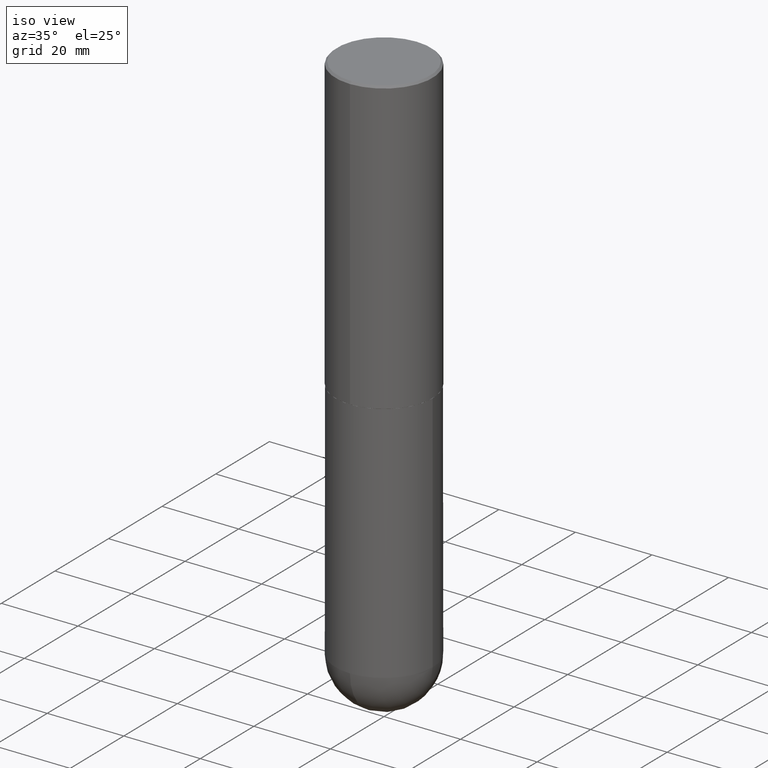
[diagram: clean part render]
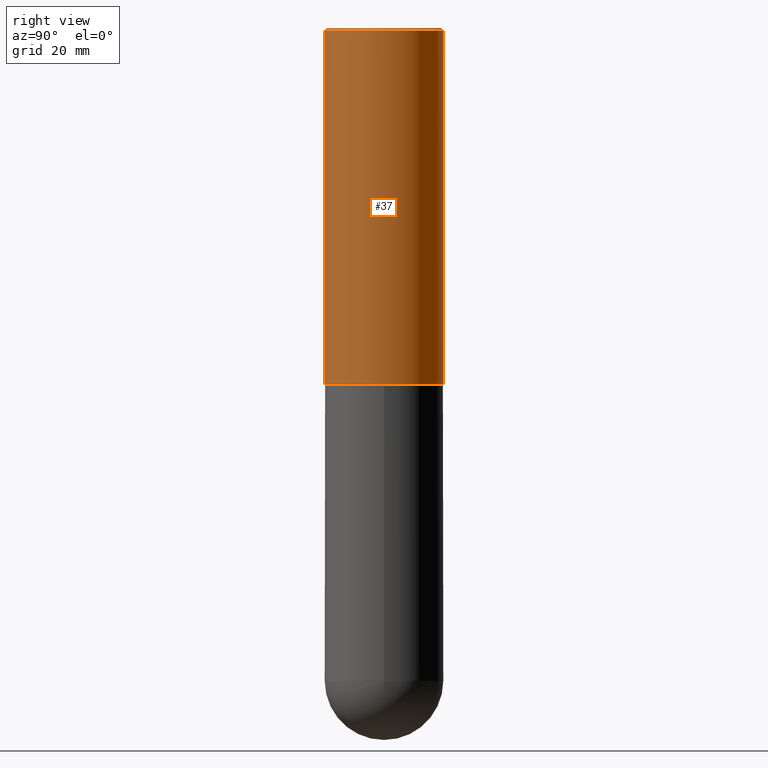
[diagram: tour spotlight — one face highlighted and labeled with its STEP entity id]
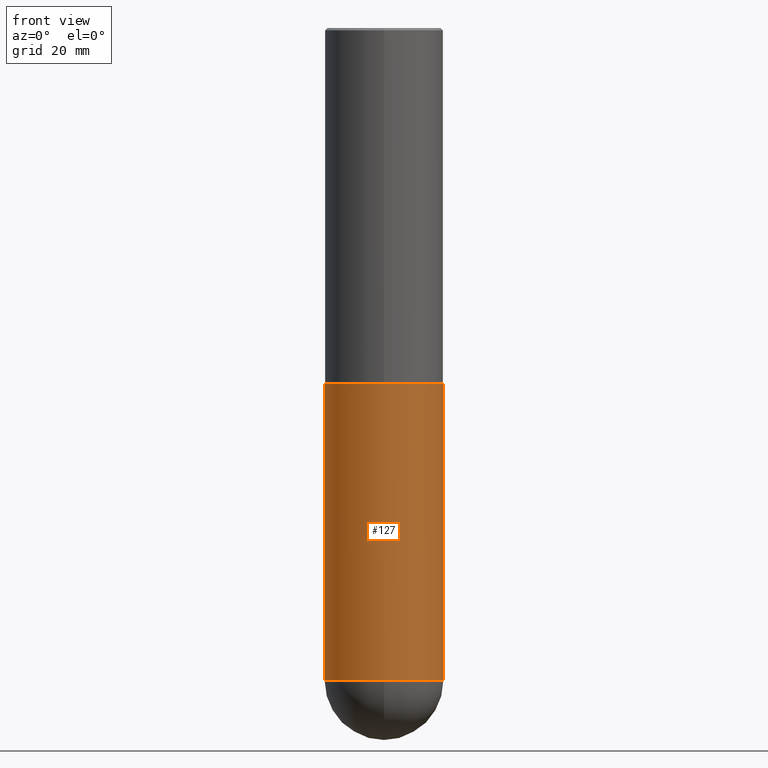
[diagram: tour spotlight — one face highlighted and labeled with its STEP entity id]
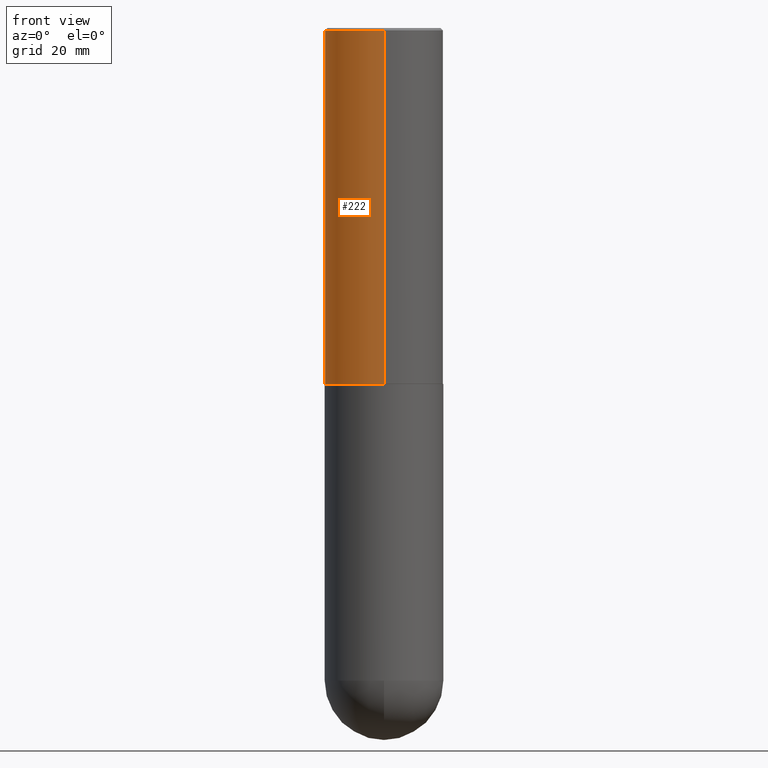
[diagram: tour spotlight — one face highlighted and labeled with its STEP entity id]
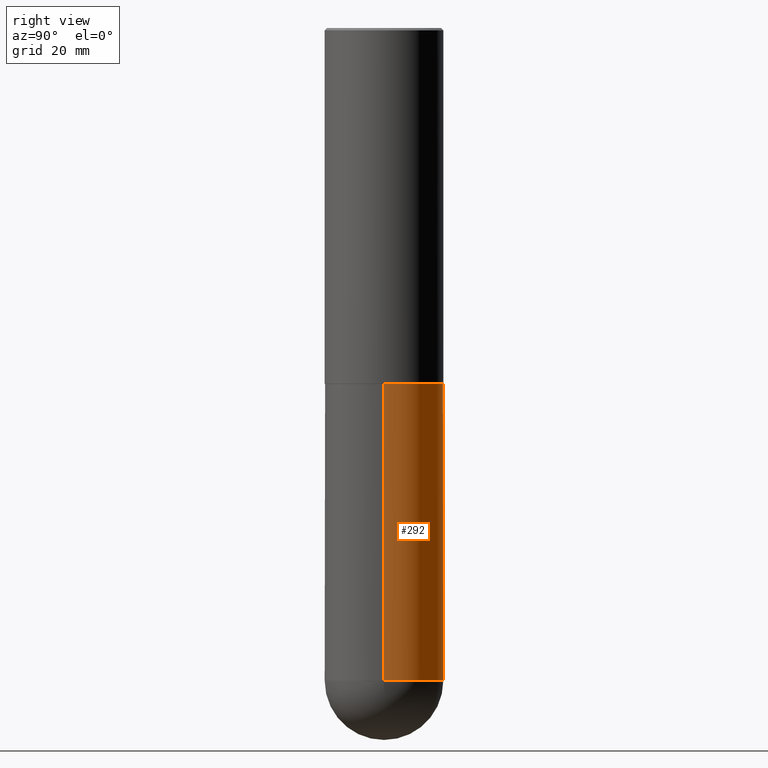
[diagram: tour spotlight — one face highlighted and labeled with its STEP entity id]
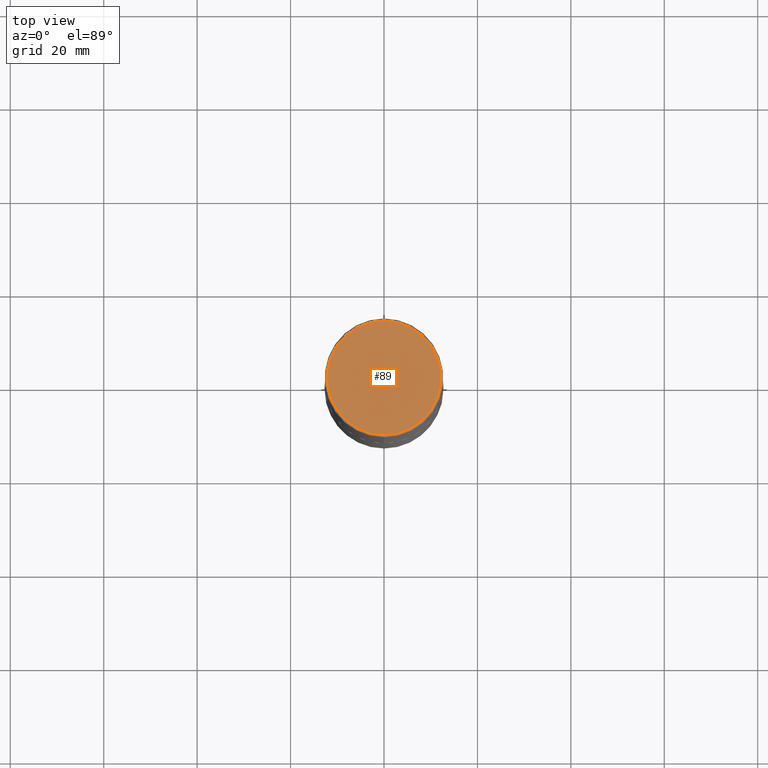
[diagram: tour spotlight — one face highlighted and labeled with its STEP entity id]
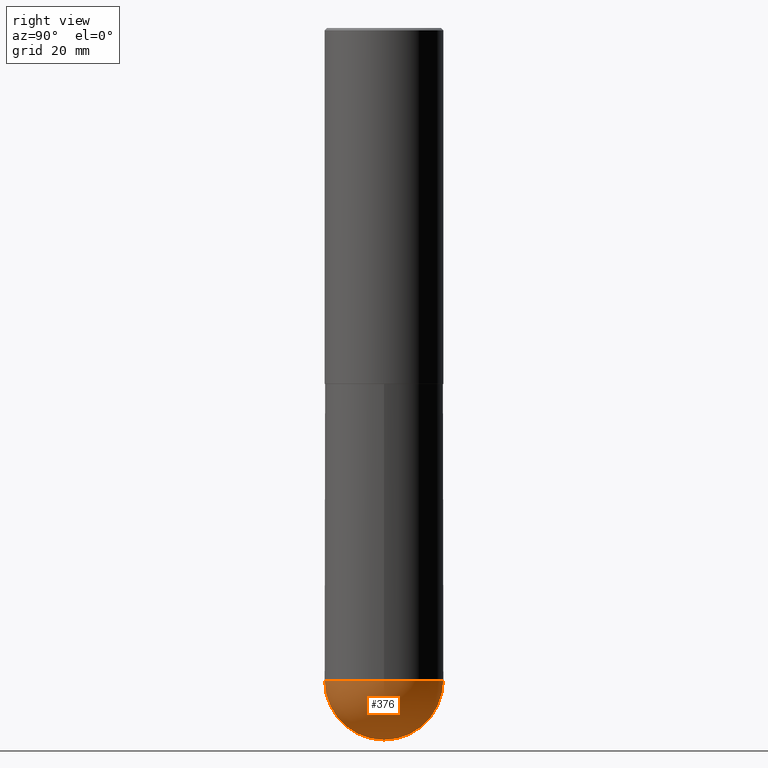
[diagram: tour spotlight — one face highlighted and labeled with its STEP entity id]
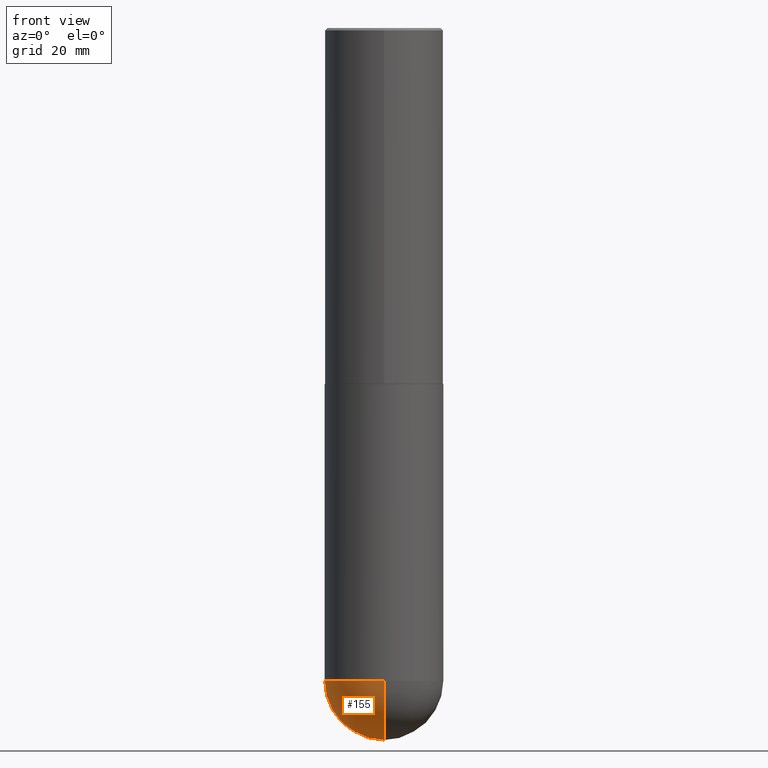
[diagram: tour spotlight — one face highlighted and labeled with its STEP entity id]
A machine part: a face-by-face anatomy tour. The part has 13 B-rep faces; the first image is the clean iso view, then the 7 largest visible faces are spotlighted one at a time (largest first), each with its STEP entity span.

Face 1 — right view, entity #37. In plain terms, the highlighted cylindrical surface (partial cylindrical patch) has radius 12.7 mm, axis along (-0, 0, 1).
Definition (entity closure, byte-faithful):
#24 = EDGE_CURVE ( 'NONE', #262, #86, #57, .T. ) ;
#29 = CYLINDRICAL_SURFACE ( 'NONE', #102, 0.5000000000000002220 ) ;
#32 = CARTESIAN_POINT ( 'NONE',  ( 4.890045448301129813E-31, -6.984240307412204920E-17, -0.02000000000000010797 ) ) ;
#37 = ADVANCED_FACE ( 'NONE', ( #186 ), #29, .T. ) ;
#50 = LINE ( 'NONE', #172, #250 ) ;
#57 = LINE ( 'NONE', #185, #95 ) ;
#76 = DIRECTION ( 'NONE',  ( -2.445022724150551752E-29, 3.492120153706083922E-15, 1.000000000000000000 ) ) ;
#83 = CARTESIAN_POINT ( 'NONE',  ( -3.430248998885764992E-15, -0.5000000000000001110, -0.01999999999999835937 ) ) ;
#86 = VERTEX_POINT ( 'NONE', #282 ) ;
#87 = DIRECTION ( 'NONE',  ( -6.982962677686265133E-15, -1.000000000000000000, 3.278217592397113101E-15 ) ) ;
#92 = DIRECTION ( 'NONE',  ( -6.982962677686265922E-15, -1.000000000000000000, 3.492120153706083528E-15 ) ) ;
#93 = EDGE_LOOP ( 'NONE', ( #331, #145, #206, #275 ) ) ;
#95 = VECTOR ( 'NONE', #219, 39.37007874015748143 ) ;
#102 = AXIS2_PLACEMENT_3D ( 'NONE', #274, #404, #92 ) ;
#141 = DIRECTION ( 'NONE',  ( -2.445022724150551752E-29, 3.492120153706083922E-15, 1.000000000000000000 ) ) ;
#142 = CIRCLE ( 'NONE', #218, 0.5000000000000000000 ) ;
#145 = ORIENTED_EDGE ( 'NONE', *, *, #24, .T. ) ;
#159 = DIRECTION ( 'NONE',  ( -6.982962677686265922E-15, -1.000000000000000000, 3.491643216902136408E-15 ) ) ;
#172 = CARTESIAN_POINT ( 'NONE',  ( -3.491481338843134539E-15, -0.5000000000000002220, 1.746060076853042553E-15 ) ) ;
#185 = CARTESIAN_POINT ( 'NONE',  ( 3.552713678800501718E-15, 0.5000000000000002220, -1.746060076853042553E-15 ) ) ;
#186 = FACE_OUTER_BOUND ( 'NONE', #93, .T. ) ;
#189 = EDGE_CURVE ( 'NONE', #242, #86, #142, .T. ) ;
#204 = VERTEX_POINT ( 'NONE', #385 ) ;
#206 = ORIENTED_EDGE ( 'NONE', *, *, #189, .F. ) ;
#218 = AXIS2_PLACEMENT_3D ( 'NONE', #32, #412, #159 ) ;
#219 = DIRECTION ( 'NONE',  ( -2.445022724150551752E-29, 3.492120153706083922E-15, 1.000000000000000000 ) ) ;
#242 = VERTEX_POINT ( 'NONE', #83 ) ;
#243 = CARTESIAN_POINT ( 'NONE',  ( 7.332623149727504925E-29, -1.047286834096454774E-14, -2.999000000000000554 ) ) ;
#250 = VECTOR ( 'NONE', #76, 39.37007874015748143 ) ;
#251 = EDGE_CURVE ( 'NONE', #204, #242, #50, .T. ) ;
#260 = CARTESIAN_POINT ( 'NONE',  ( 3.552713678800539584E-15, 0.4999999999999900080, -2.999000000000001886 ) ) ;
#262 = VERTEX_POINT ( 'NONE', #260 ) ;
#274 = CARTESIAN_POINT ( 'NONE',  ( 0.000000000000000000, 0.000000000000000000, 0.000000000000000000 ) ) ;
#275 = ORIENTED_EDGE ( 'NONE', *, *, #251, .F. ) ;
#282 = CARTESIAN_POINT ( 'NONE',  ( 3.491481338843133355E-15, 0.4999999999999999445, -0.02000000000000185310 ) ) ;
#331 = ORIENTED_EDGE ( 'NONE', *, *, #353, .T. ) ;
#344 = AXIS2_PLACEMENT_3D ( 'NONE', #243, #141, #87 ) ;
#346 = CIRCLE ( 'NONE', #344, 0.5000000000000004441 ) ;
#353 = EDGE_CURVE ( 'NONE', #204, #262, #346, .T. ) ;
#385 = CARTESIAN_POINT ( 'NONE',  ( -3.491481338843062752E-15, -0.5000000000000108802, -2.998999999999998778 ) ) ;
#404 = DIRECTION ( 'NONE',  ( -2.445022724150551752E-29, 3.492120153706083922E-15, 1.000000000000000000 ) ) ;
#412 = DIRECTION ( 'NONE',  ( -2.445022724150551752E-29, 3.492120153706083922E-15, 1.000000000000000000 ) ) ;

Face 2 — front view, entity #127. In plain terms, the highlighted cylindrical surface (partial cylindrical patch) has radius 12.7 mm, axis along (-0, 0, 1).
Definition (entity closure, byte-faithful):
#8 = VERTEX_POINT ( 'NONE', #183 ) ;
#9 = CARTESIAN_POINT ( 'NONE',  ( 1.345007843401825128E-28, -1.920314736363730603E-14, -5.500000000000000888 ) ) ;
#26 = EDGE_LOOP ( 'NONE', ( #122, #43, #49, #178, #301 ) ) ;
#43 = ORIENTED_EDGE ( 'NONE', *, *, #305, .T. ) ;
#47 = DIRECTION ( 'NONE',  ( -2.445468806185136877E-29, 3.491481338843145188E-15, 1.000000000000000000 ) ) ;
#49 = ORIENTED_EDGE ( 'NONE', *, *, #408, .T. ) ;
#70 = DIRECTION ( 'NONE',  ( -2.445468806185136597E-29, 3.491481338843145583E-15, 1.000000000000000000 ) ) ;
#96 = CIRCLE ( 'NONE', #367, 0.5000000000000000000 ) ;
#101 = DIRECTION ( 'NONE',  ( 1.000000000000000000, -6.982962677686266711E-15, 4.876176775795935793E-29 ) ) ;
#113 = DIRECTION ( 'NONE',  ( -2.445468806185136597E-29, 3.491481338843145583E-15, 1.000000000000000000 ) ) ;
#117 = CARTESIAN_POINT ( 'NONE',  ( -0.5000000000000000000, -1.128608201128287263E-14, -5.500000000000000888 ) ) ;
#122 = ORIENTED_EDGE ( 'NONE', *, *, #133, .F. ) ;
#127 = ADVANCED_FACE ( 'NONE', ( #350 ), #193, .T. ) ;
#133 = EDGE_CURVE ( 'NONE', #398, #171, #226, .T. ) ;
#153 = CARTESIAN_POINT ( 'NONE',  ( 0.5000000000000000000, -3.491481338843133355E-15, 2.438088387897967896E-29 ) ) ;
#156 = VERTEX_POINT ( 'NONE', #348 ) ;
#158 = AXIS2_PLACEMENT_3D ( 'NONE', #190, #70, #101 ) ;
#165 = DIRECTION ( 'NONE',  ( -2.445468806185136877E-29, 3.491481338843145188E-15, 1.000000000000000000 ) ) ;
#171 = VERTEX_POINT ( 'NONE', #314 ) ;
#177 = DIRECTION ( 'NONE',  ( 1.000000000000000000, -6.982962677686266711E-15, 0.000000000000000000 ) ) ;
#178 = ORIENTED_EDGE ( 'NONE', *, *, #284, .T. ) ;
#183 = CARTESIAN_POINT ( 'NONE',  ( -3.552713678800369978E-15, -0.5000000000000196509, -5.499999999999999112 ) ) ;
#187 = AXIS2_PLACEMENT_3D ( 'NONE', #241, #389, #379 ) ;
#190 = CARTESIAN_POINT ( 'NONE',  ( 0.000000000000000000, 0.000000000000000000, 0.000000000000000000 ) ) ;
#193 = CYLINDRICAL_SURFACE ( 'NONE', #158, 0.5000000000000000000 ) ;
#211 = AXIS2_PLACEMENT_3D ( 'NONE', #364, #113, #177 ) ;
#215 = DIRECTION ( 'NONE',  ( -2.445468806185136597E-29, 3.491481338843145583E-15, 1.000000000000000000 ) ) ;
#217 = CIRCLE ( 'NONE', #187, 0.5000000000000000000 ) ;
#226 = LINE ( 'NONE', #409, #246 ) ;
#241 = CARTESIAN_POINT ( 'NONE',  ( 1.345007843401825128E-28, -1.920314736363730603E-14, -5.500000000000000888 ) ) ;
#246 = VECTOR ( 'NONE', #165, 39.37007874015748143 ) ;
#268 = DIRECTION ( 'NONE',  ( 1.000000000000000000, -6.982962677686270655E-15, 0.000000000000000000 ) ) ;
#284 = EDGE_CURVE ( 'NONE', #299, #156, #300, .T. ) ;
#294 = CARTESIAN_POINT ( 'NONE',  ( 0.5000000000000000000, -1.833027702892651007E-14, -5.500000000000000888 ) ) ;
#299 = VERTEX_POINT ( 'NONE', #294 ) ;
#300 = LINE ( 'NONE', #153, #393 ) ;
#301 = ORIENTED_EDGE ( 'NONE', *, *, #336, .F. ) ;
#305 = EDGE_CURVE ( 'NONE', #398, #8, #96, .T. ) ;
#314 = CARTESIAN_POINT ( 'NONE',  ( -0.5000000000000000000, -1.128608201128286947E-14, -3.000000000000000444 ) ) ;
#336 = EDGE_CURVE ( 'NONE', #171, #156, #383, .T. ) ;
#348 = CARTESIAN_POINT ( 'NONE',  ( 0.5000000000000000000, -1.396592535537257129E-14, -3.000000000000000444 ) ) ;
#350 = FACE_OUTER_BOUND ( 'NONE', #26, .T. ) ;
#364 = CARTESIAN_POINT ( 'NONE',  ( 7.336406418555409790E-29, -1.047444401652943635E-14, -3.000000000000000444 ) ) ;
#367 = AXIS2_PLACEMENT_3D ( 'NONE', #9, #215, #268 ) ;
#379 = DIRECTION ( 'NONE',  ( 1.000000000000000000, -6.982962677686270655E-15, 0.000000000000000000 ) ) ;
#383 = CIRCLE ( 'NONE', #211, 0.5000000000000000000 ) ;
#389 = DIRECTION ( 'NONE',  ( -2.445468806185136597E-29, 3.491481338843145583E-15, 1.000000000000000000 ) ) ;
#393 = VECTOR ( 'NONE', #47, 39.37007874015748143 ) ;
#398 = VERTEX_POINT ( 'NONE', #117 ) ;
#408 = EDGE_CURVE ( 'NONE', #8, #299, #217, .T. ) ;
#409 = CARTESIAN_POINT ( 'NONE',  ( -0.5000000000000000000, 3.552713678800500929E-15, -2.459467545127452891E-29 ) ) ;

Face 3 — front view, entity #222. In plain terms, the highlighted cylindrical surface (partial cylindrical patch) has radius 12.7 mm, axis along (-0, 0, 1).
Definition (entity closure, byte-faithful):
#24 = EDGE_CURVE ( 'NONE', #262, #86, #57, .T. ) ;
#50 = LINE ( 'NONE', #172, #250 ) ;
#57 = LINE ( 'NONE', #185, #95 ) ;
#61 = EDGE_CURVE ( 'NONE', #262, #204, #150, .T. ) ;
#72 = CYLINDRICAL_SURFACE ( 'NONE', #90, 0.5000000000000002220 ) ;
#76 = DIRECTION ( 'NONE',  ( -2.445022724150551752E-29, 3.492120153706083922E-15, 1.000000000000000000 ) ) ;
#83 = CARTESIAN_POINT ( 'NONE',  ( -3.430248998885764992E-15, -0.5000000000000001110, -0.01999999999999835937 ) ) ;
#85 = AXIS2_PLACEMENT_3D ( 'NONE', #399, #181, #121 ) ;
#86 = VERTEX_POINT ( 'NONE', #282 ) ;
#90 = AXIS2_PLACEMENT_3D ( 'NONE', #320, #169, #288 ) ;
#95 = VECTOR ( 'NONE', #219, 39.37007874015748143 ) ;
#119 = ORIENTED_EDGE ( 'NONE', *, *, #61, .T. ) ;
#121 = DIRECTION ( 'NONE',  ( -6.982962677686265922E-15, -1.000000000000000000, 3.491643216902136408E-15 ) ) ;
#128 = DIRECTION ( 'NONE',  ( -2.445022724150551752E-29, 3.492120153706083922E-15, 1.000000000000000000 ) ) ;
#150 = CIRCLE ( 'NONE', #377, 0.5000000000000004441 ) ;
#154 = DIRECTION ( 'NONE',  ( -6.982962677686265133E-15, -1.000000000000000000, 3.278217592397113101E-15 ) ) ;
#169 = DIRECTION ( 'NONE',  ( -2.445022724150551752E-29, 3.492120153706083922E-15, 1.000000000000000000 ) ) ;
#172 = CARTESIAN_POINT ( 'NONE',  ( -3.491481338843134539E-15, -0.5000000000000002220, 1.746060076853042553E-15 ) ) ;
#181 = DIRECTION ( 'NONE',  ( -2.445022724150551752E-29, 3.492120153706083922E-15, 1.000000000000000000 ) ) ;
#185 = CARTESIAN_POINT ( 'NONE',  ( 3.552713678800501718E-15, 0.5000000000000002220, -1.746060076853042553E-15 ) ) ;
#204 = VERTEX_POINT ( 'NONE', #385 ) ;
#214 = EDGE_LOOP ( 'NONE', ( #324, #119, #374, #235 ) ) ;
#219 = DIRECTION ( 'NONE',  ( -2.445022724150551752E-29, 3.492120153706083922E-15, 1.000000000000000000 ) ) ;
#222 = ADVANCED_FACE ( 'NONE', ( #407 ), #72, .T. ) ;
#235 = ORIENTED_EDGE ( 'NONE', *, *, #338, .F. ) ;
#242 = VERTEX_POINT ( 'NONE', #83 ) ;
#250 = VECTOR ( 'NONE', #76, 39.37007874015748143 ) ;
#251 = EDGE_CURVE ( 'NONE', #204, #242, #50, .T. ) ;
#260 = CARTESIAN_POINT ( 'NONE',  ( 3.552713678800539584E-15, 0.4999999999999900080, -2.999000000000001886 ) ) ;
#262 = VERTEX_POINT ( 'NONE', #260 ) ;
#282 = CARTESIAN_POINT ( 'NONE',  ( 3.491481338843133355E-15, 0.4999999999999999445, -0.02000000000000185310 ) ) ;
#288 = DIRECTION ( 'NONE',  ( -6.982962677686265922E-15, -1.000000000000000000, 3.492120153706083528E-15 ) ) ;
#310 = CARTESIAN_POINT ( 'NONE',  ( 7.332623149727504925E-29, -1.047286834096454774E-14, -2.999000000000000554 ) ) ;
#320 = CARTESIAN_POINT ( 'NONE',  ( 0.000000000000000000, 0.000000000000000000, 0.000000000000000000 ) ) ;
#324 = ORIENTED_EDGE ( 'NONE', *, *, #24, .F. ) ;
#338 = EDGE_CURVE ( 'NONE', #86, #242, #378, .T. ) ;
#374 = ORIENTED_EDGE ( 'NONE', *, *, #251, .T. ) ;
#377 = AXIS2_PLACEMENT_3D ( 'NONE', #310, #128, #154 ) ;
#378 = CIRCLE ( 'NONE', #85, 0.5000000000000000000 ) ;
#385 = CARTESIAN_POINT ( 'NONE',  ( -3.491481338843062752E-15, -0.5000000000000108802, -2.998999999999998778 ) ) ;
#399 = CARTESIAN_POINT ( 'NONE',  ( 4.890045448301129813E-31, -6.984240307412204920E-17, -0.02000000000000010797 ) ) ;
#407 = FACE_OUTER_BOUND ( 'NONE', #214, .T. ) ;

Face 4 — right view, entity #292. In plain terms, the highlighted cylindrical surface (partial cylindrical patch) has radius 12.7 mm, axis along (-0, 0, 1).
Definition (entity closure, byte-faithful):
#13 = DIRECTION ( 'NONE',  ( -2.445468806185136597E-29, 3.491481338843145583E-15, 1.000000000000000000 ) ) ;
#39 = CARTESIAN_POINT ( 'NONE',  ( 7.336406418555409790E-29, -1.047444401652943635E-14, -3.000000000000000444 ) ) ;
#47 = DIRECTION ( 'NONE',  ( -2.445468806185136877E-29, 3.491481338843145188E-15, 1.000000000000000000 ) ) ;
#54 = EDGE_LOOP ( 'NONE', ( #281, #392, #140, #333, #307 ) ) ;
#62 = DIRECTION ( 'NONE',  ( -2.445468806185136597E-29, 3.491481338843145583E-15, 1.000000000000000000 ) ) ;
#68 = CARTESIAN_POINT ( 'NONE',  ( 1.345007843401825128E-28, -1.920314736363730603E-14, -5.500000000000000888 ) ) ;
#98 = EDGE_CURVE ( 'NONE', #156, #171, #249, .T. ) ;
#117 = CARTESIAN_POINT ( 'NONE',  ( -0.5000000000000000000, -1.128608201128287263E-14, -5.500000000000000888 ) ) ;
#124 = AXIS2_PLACEMENT_3D ( 'NONE', #39, #131, #134 ) ;
#131 = DIRECTION ( 'NONE',  ( -2.445468806185136597E-29, 3.491481338843145583E-15, 1.000000000000000000 ) ) ;
#133 = EDGE_CURVE ( 'NONE', #398, #171, #226, .T. ) ;
#134 = DIRECTION ( 'NONE',  ( 1.000000000000000000, -6.982962677686266711E-15, 0.000000000000000000 ) ) ;
#136 = AXIS2_PLACEMENT_3D ( 'NONE', #210, #13, #207 ) ;
#140 = ORIENTED_EDGE ( 'NONE', *, *, #98, .F. ) ;
#144 = CARTESIAN_POINT ( 'NONE',  ( 3.491481338843267462E-15, 0.4999999999999808487, -5.500000000000002665 ) ) ;
#153 = CARTESIAN_POINT ( 'NONE',  ( 0.5000000000000000000, -3.491481338843133355E-15, 2.438088387897967896E-29 ) ) ;
#156 = VERTEX_POINT ( 'NONE', #348 ) ;
#161 = EDGE_CURVE ( 'NONE', #299, #397, #174, .T. ) ;
#164 = DIRECTION ( 'NONE',  ( 1.000000000000000000, -6.982962677686270655E-15, 0.000000000000000000 ) ) ;
#165 = DIRECTION ( 'NONE',  ( -2.445468806185136877E-29, 3.491481338843145188E-15, 1.000000000000000000 ) ) ;
#171 = VERTEX_POINT ( 'NONE', #314 ) ;
#174 = CIRCLE ( 'NONE', #402, 0.5000000000000000000 ) ;
#207 = DIRECTION ( 'NONE',  ( 1.000000000000000000, -6.982962677686270655E-15, 0.000000000000000000 ) ) ;
#210 = CARTESIAN_POINT ( 'NONE',  ( 1.345007843401825128E-28, -1.920314736363730603E-14, -5.500000000000000888 ) ) ;
#213 = FACE_OUTER_BOUND ( 'NONE', #54, .T. ) ;
#226 = LINE ( 'NONE', #409, #246 ) ;
#233 = CYLINDRICAL_SURFACE ( 'NONE', #406, 0.5000000000000000000 ) ;
#246 = VECTOR ( 'NONE', #165, 39.37007874015748143 ) ;
#249 = CIRCLE ( 'NONE', #124, 0.5000000000000000000 ) ;
#281 = ORIENTED_EDGE ( 'NONE', *, *, #371, .T. ) ;
#284 = EDGE_CURVE ( 'NONE', #299, #156, #300, .T. ) ;
#291 = DIRECTION ( 'NONE',  ( -2.445468806185136597E-29, 3.491481338843145583E-15, 1.000000000000000000 ) ) ;
#292 = ADVANCED_FACE ( 'NONE', ( #213 ), #233, .T. ) ;
#294 = CARTESIAN_POINT ( 'NONE',  ( 0.5000000000000000000, -1.833027702892651007E-14, -5.500000000000000888 ) ) ;
#299 = VERTEX_POINT ( 'NONE', #294 ) ;
#300 = LINE ( 'NONE', #153, #393 ) ;
#307 = ORIENTED_EDGE ( 'NONE', *, *, #161, .T. ) ;
#314 = CARTESIAN_POINT ( 'NONE',  ( -0.5000000000000000000, -1.128608201128286947E-14, -3.000000000000000444 ) ) ;
#330 = CARTESIAN_POINT ( 'NONE',  ( 0.000000000000000000, 0.000000000000000000, 0.000000000000000000 ) ) ;
#333 = ORIENTED_EDGE ( 'NONE', *, *, #284, .F. ) ;
#339 = CIRCLE ( 'NONE', #136, 0.5000000000000000000 ) ;
#348 = CARTESIAN_POINT ( 'NONE',  ( 0.5000000000000000000, -1.396592535537257129E-14, -3.000000000000000444 ) ) ;
#358 = DIRECTION ( 'NONE',  ( 1.000000000000000000, -6.982962677686266711E-15, 4.876176775795935793E-29 ) ) ;
#371 = EDGE_CURVE ( 'NONE', #397, #398, #339, .T. ) ;
#392 = ORIENTED_EDGE ( 'NONE', *, *, #133, .T. ) ;
#393 = VECTOR ( 'NONE', #47, 39.37007874015748143 ) ;
#397 = VERTEX_POINT ( 'NONE', #144 ) ;
#398 = VERTEX_POINT ( 'NONE', #117 ) ;
#402 = AXIS2_PLACEMENT_3D ( 'NONE', #68, #62, #164 ) ;
#406 = AXIS2_PLACEMENT_3D ( 'NONE', #330, #291, #358 ) ;
#409 = CARTESIAN_POINT ( 'NONE',  ( -0.5000000000000000000, 3.552713678800500929E-15, -2.459467545127452891E-29 ) ) ;

Face 5 — top view, entity #89. In plain terms, the highlighted planar face has unit normal (0, -0, -1).
Definition (entity closure, byte-faithful):
#17 = CARTESIAN_POINT ( 'NONE',  ( 2.368360758220746932E-44, -3.382627185153323698E-30, -9.686457041185830864E-16 ) ) ;
#22 = AXIS2_PLACEMENT_3D ( 'NONE', #36, #220, #196 ) ;
#33 = EDGE_CURVE ( 'NONE', #97, #173, #272, .T. ) ;
#34 = AXIS2_PLACEMENT_3D ( 'NONE', #17, #394, #205 ) ;
#36 = CARTESIAN_POINT ( 'NONE',  ( 3.351822085289413859E-15, 0.4800000000000008704, -2.160540525838214906E-15 ) ) ;
#48 = ORIENTED_EDGE ( 'NONE', *, *, #298, .T. ) ;
#58 = DIRECTION ( 'NONE',  ( -6.982962677686265922E-15, -1.000000000000000000, 3.492120153706083922E-15 ) ) ;
#89 = ADVANCED_FACE ( 'NONE', ( #255 ), #256, .F. ) ;
#91 = DIRECTION ( 'NONE',  ( -2.445022724150551752E-29, 3.492120153706083922E-15, 1.000000000000000000 ) ) ;
#97 = VERTEX_POINT ( 'NONE', #231 ) ;
#114 = ORIENTED_EDGE ( 'NONE', *, *, #33, .T. ) ;
#143 = EDGE_LOOP ( 'NONE', ( #48, #114 ) ) ;
#173 = VERTEX_POINT ( 'NONE', #388 ) ;
#194 = CIRCLE ( 'NONE', #34, 0.4800000000000008704 ) ;
#196 = DIRECTION ( 'NONE',  ( 6.982962677686265922E-15, 1.000000000000000000, -3.492120153706083922E-15 ) ) ;
#205 = DIRECTION ( 'NONE',  ( -6.982962677686265922E-15, -1.000000000000000000, 3.492120153706083922E-15 ) ) ;
#220 = DIRECTION ( 'NONE',  ( 2.445022724150551191E-29, -3.492120153706083922E-15, -1.000000000000000000 ) ) ;
#231 = CARTESIAN_POINT ( 'NONE',  ( -3.361644018908052816E-15, -0.4800000000000008704, 7.075719696603405724E-16 ) ) ;
#255 = FACE_OUTER_BOUND ( 'NONE', #143, .T. ) ;
#256 = PLANE ( 'NONE',  #22 ) ;
#272 = CIRCLE ( 'NONE', #372, 0.4800000000000008704 ) ;
#298 = EDGE_CURVE ( 'NONE', #173, #97, #194, .T. ) ;
#372 = AXIS2_PLACEMENT_3D ( 'NONE', #375, #91, #58 ) ;
#375 = CARTESIAN_POINT ( 'NONE',  ( 2.368360758220746932E-44, -3.382627185153323698E-30, -9.686457041185830864E-16 ) ) ;
#388 = CARTESIAN_POINT ( 'NONE',  ( 3.421651712066274001E-15, 0.4800000000000008704, -2.644863377897506548E-15 ) ) ;
#394 = DIRECTION ( 'NONE',  ( -2.445022724150551752E-29, 3.492120153706083922E-15, 1.000000000000000000 ) ) ;

Face 6 — right view, entity #376. In plain terms, the highlighted spherical surface has radius 12.7 mm.
Definition (entity closure, byte-faithful):
#8 = VERTEX_POINT ( 'NONE', #183 ) ;
#16 = ORIENTED_EDGE ( 'NONE', *, *, #80, .F. ) ;
#31 = DIRECTION ( 'NONE',  ( -1.000000000000000000, 7.105427357601001070E-15, -4.926315508542082329E-29 ) ) ;
#55 = DIRECTION ( 'NONE',  ( 1.000000000000000000, -6.982962677686265922E-15, 4.883557194083112340E-29 ) ) ;
#62 = DIRECTION ( 'NONE',  ( -2.445468806185136597E-29, 3.491481338843145583E-15, 1.000000000000000000 ) ) ;
#68 = CARTESIAN_POINT ( 'NONE',  ( 1.345007843401825128E-28, -1.920314736363730603E-14, -5.500000000000000888 ) ) ;
#79 = ORIENTED_EDGE ( 'NONE', *, *, #161, .F. ) ;
#80 = EDGE_CURVE ( 'NONE', #264, #8, #278, .T. ) ;
#82 = ORIENTED_EDGE ( 'NONE', *, *, #408, .F. ) ;
#144 = CARTESIAN_POINT ( 'NONE',  ( 3.491481338843267462E-15, 0.4999999999999808487, -5.500000000000002665 ) ) ;
#148 = DIRECTION ( 'NONE',  ( 6.982962677686265922E-15, 1.000000000000000000, 0.000000000000000000 ) ) ;
#161 = EDGE_CURVE ( 'NONE', #299, #397, #174, .T. ) ;
#164 = DIRECTION ( 'NONE',  ( 1.000000000000000000, -6.982962677686270655E-15, 0.000000000000000000 ) ) ;
#174 = CIRCLE ( 'NONE', #402, 0.5000000000000000000 ) ;
#183 = CARTESIAN_POINT ( 'NONE',  ( -3.552713678800369978E-15, -0.5000000000000196509, -5.499999999999999112 ) ) ;
#187 = AXIS2_PLACEMENT_3D ( 'NONE', #241, #389, #379 ) ;
#188 = CARTESIAN_POINT ( 'NONE',  ( 1.311895865610436840E-28, -1.967732973177735475E-14, -5.500000000000000888 ) ) ;
#201 = DIRECTION ( 'NONE',  ( -7.105427357601000281E-15, -1.000000000000000000, 0.000000000000000000 ) ) ;
#202 = AXIS2_PLACEMENT_3D ( 'NONE', #188, #31, #201 ) ;
#217 = CIRCLE ( 'NONE', #187, 0.5000000000000000000 ) ;
#241 = CARTESIAN_POINT ( 'NONE',  ( 1.345007843401825128E-28, -1.920314736363730603E-14, -5.500000000000000888 ) ) ;
#261 = AXIS2_PLACEMENT_3D ( 'NONE', #396, #266, #297 ) ;
#263 = SPHERICAL_SURFACE ( 'NONE', #261, 0.5000000000000005551 ) ;
#264 = VERTEX_POINT ( 'NONE', #369 ) ;
#266 = DIRECTION ( 'NONE',  ( -1.000000000000000000, 6.982962677686265922E-15, -4.883557194083112901E-29 ) ) ;
#278 = CIRCLE ( 'NONE', #202, 0.5000000000000005551 ) ;
#290 = ORIENTED_EDGE ( 'NONE', *, *, #335, .T. ) ;
#294 = CARTESIAN_POINT ( 'NONE',  ( 0.5000000000000000000, -1.833027702892651007E-14, -5.500000000000000888 ) ) ;
#297 = DIRECTION ( 'NONE',  ( 6.982962677686265922E-15, 1.000000000000000000, -4.370956789862816416E-15 ) ) ;
#299 = VERTEX_POINT ( 'NONE', #294 ) ;
#303 = AXIS2_PLACEMENT_3D ( 'NONE', #332, #55, #148 ) ;
#325 = FACE_OUTER_BOUND ( 'NONE', #368, .T. ) ;
#328 = CIRCLE ( 'NONE', #303, 0.5000000000000005551 ) ;
#332 = CARTESIAN_POINT ( 'NONE',  ( 1.311895865610436840E-28, -1.967732973177735475E-14, -5.500000000000000888 ) ) ;
#335 = EDGE_CURVE ( 'NONE', #264, #397, #328, .T. ) ;
#368 = EDGE_LOOP ( 'NONE', ( #16, #290, #79, #82 ) ) ;
#369 = CARTESIAN_POINT ( 'NONE',  ( 1.436307221642642309E-28, -2.139245423122024710E-14, -6.000000000000001776 ) ) ;
#376 = ADVANCED_FACE ( 'NONE', ( #325 ), #263, .T. ) ;
#379 = DIRECTION ( 'NONE',  ( 1.000000000000000000, -6.982962677686270655E-15, 0.000000000000000000 ) ) ;
#389 = DIRECTION ( 'NONE',  ( -2.445468806185136597E-29, 3.491481338843145583E-15, 1.000000000000000000 ) ) ;
#396 = CARTESIAN_POINT ( 'NONE',  ( 1.311895865610436840E-28, -1.967732973177735475E-14, -5.500000000000000888 ) ) ;
#397 = VERTEX_POINT ( 'NONE', #144 ) ;
#402 = AXIS2_PLACEMENT_3D ( 'NONE', #68, #62, #164 ) ;
#408 = EDGE_CURVE ( 'NONE', #8, #299, #217, .T. ) ;

Face 7 — front view, entity #155. In plain terms, the highlighted spherical surface has radius 12.7 mm.
Definition (entity closure, byte-faithful):
#8 = VERTEX_POINT ( 'NONE', #183 ) ;
#9 = CARTESIAN_POINT ( 'NONE',  ( 1.345007843401825128E-28, -1.920314736363730603E-14, -5.500000000000000888 ) ) ;
#13 = DIRECTION ( 'NONE',  ( -2.445468806185136597E-29, 3.491481338843145583E-15, 1.000000000000000000 ) ) ;
#31 = DIRECTION ( 'NONE',  ( -1.000000000000000000, 7.105427357601001070E-15, -4.926315508542082329E-29 ) ) ;
#55 = DIRECTION ( 'NONE',  ( 1.000000000000000000, -6.982962677686265922E-15, 4.883557194083112340E-29 ) ) ;
#65 = AXIS2_PLACEMENT_3D ( 'NONE', #99, #340, #223 ) ;
#80 = EDGE_CURVE ( 'NONE', #264, #8, #278, .T. ) ;
#96 = CIRCLE ( 'NONE', #367, 0.5000000000000000000 ) ;
#99 = CARTESIAN_POINT ( 'NONE',  ( 1.311895865610436840E-28, -1.967732973177735475E-14, -5.500000000000000888 ) ) ;
#117 = CARTESIAN_POINT ( 'NONE',  ( -0.5000000000000000000, -1.128608201128287263E-14, -5.500000000000000888 ) ) ;
#136 = AXIS2_PLACEMENT_3D ( 'NONE', #210, #13, #207 ) ;
#144 = CARTESIAN_POINT ( 'NONE',  ( 3.491481338843267462E-15, 0.4999999999999808487, -5.500000000000002665 ) ) ;
#148 = DIRECTION ( 'NONE',  ( 6.982962677686265922E-15, 1.000000000000000000, 0.000000000000000000 ) ) ;
#151 = ORIENTED_EDGE ( 'NONE', *, *, #80, .T. ) ;
#155 = ADVANCED_FACE ( 'NONE', ( #380 ), #199, .T. ) ;
#183 = CARTESIAN_POINT ( 'NONE',  ( -3.552713678800369978E-15, -0.5000000000000196509, -5.499999999999999112 ) ) ;
#188 = CARTESIAN_POINT ( 'NONE',  ( 1.311895865610436840E-28, -1.967732973177735475E-14, -5.500000000000000888 ) ) ;
#199 = SPHERICAL_SURFACE ( 'NONE', #65, 0.5000000000000005551 ) ;
#201 = DIRECTION ( 'NONE',  ( -7.105427357601000281E-15, -1.000000000000000000, 0.000000000000000000 ) ) ;
#202 = AXIS2_PLACEMENT_3D ( 'NONE', #188, #31, #201 ) ;
#207 = DIRECTION ( 'NONE',  ( 1.000000000000000000, -6.982962677686270655E-15, 0.000000000000000000 ) ) ;
#210 = CARTESIAN_POINT ( 'NONE',  ( 1.345007843401825128E-28, -1.920314736363730603E-14, -5.500000000000000888 ) ) ;
#212 = ORIENTED_EDGE ( 'NONE', *, *, #305, .F. ) ;
#215 = DIRECTION ( 'NONE',  ( -2.445468806185136597E-29, 3.491481338843145583E-15, 1.000000000000000000 ) ) ;
#223 = DIRECTION ( 'NONE',  ( 6.982962677686265922E-15, 1.000000000000000000, -4.370956789862816416E-15 ) ) ;
#240 = ORIENTED_EDGE ( 'NONE', *, *, #371, .F. ) ;
#264 = VERTEX_POINT ( 'NONE', #369 ) ;
#268 = DIRECTION ( 'NONE',  ( 1.000000000000000000, -6.982962677686270655E-15, 0.000000000000000000 ) ) ;
#270 = ORIENTED_EDGE ( 'NONE', *, *, #335, .F. ) ;
#278 = CIRCLE ( 'NONE', #202, 0.5000000000000005551 ) ;
#303 = AXIS2_PLACEMENT_3D ( 'NONE', #332, #55, #148 ) ;
#305 = EDGE_CURVE ( 'NONE', #398, #8, #96, .T. ) ;
#328 = CIRCLE ( 'NONE', #303, 0.5000000000000005551 ) ;
#332 = CARTESIAN_POINT ( 'NONE',  ( 1.311895865610436840E-28, -1.967732973177735475E-14, -5.500000000000000888 ) ) ;
#335 = EDGE_CURVE ( 'NONE', #264, #397, #328, .T. ) ;
#339 = CIRCLE ( 'NONE', #136, 0.5000000000000000000 ) ;
#340 = DIRECTION ( 'NONE',  ( -1.000000000000000000, 6.982962677686265922E-15, -4.883557194083112901E-29 ) ) ;
#360 = EDGE_LOOP ( 'NONE', ( #270, #151, #212, #240 ) ) ;
#367 = AXIS2_PLACEMENT_3D ( 'NONE', #9, #215, #268 ) ;
#369 = CARTESIAN_POINT ( 'NONE',  ( 1.436307221642642309E-28, -2.139245423122024710E-14, -6.000000000000001776 ) ) ;
#371 = EDGE_CURVE ( 'NONE', #397, #398, #339, .T. ) ;
#380 = FACE_OUTER_BOUND ( 'NONE', #360, .T. ) ;
#397 = VERTEX_POINT ( 'NONE', #144 ) ;
#398 = VERTEX_POINT ( 'NONE', #117 ) ;